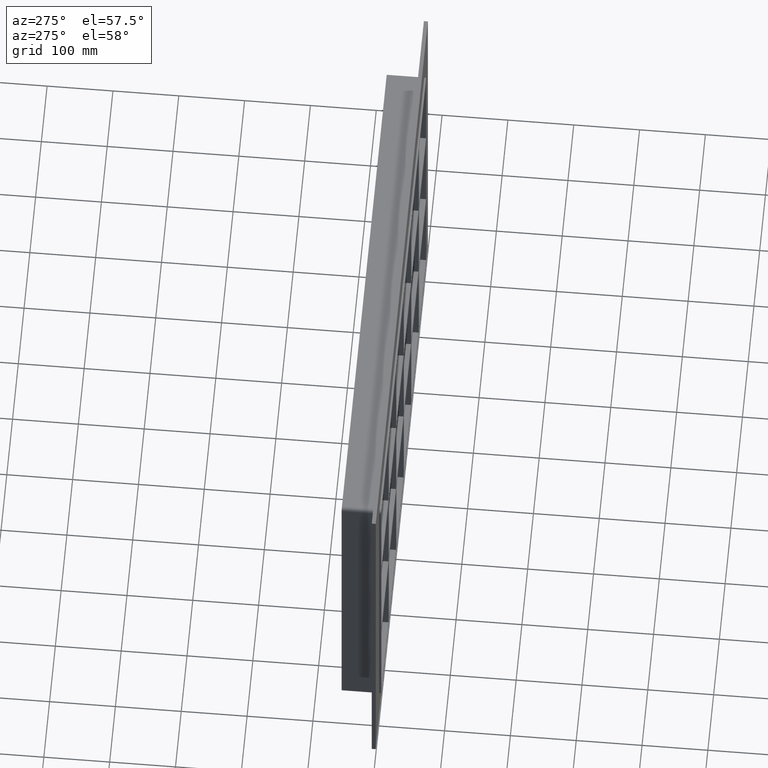
[diagram: clean part render]
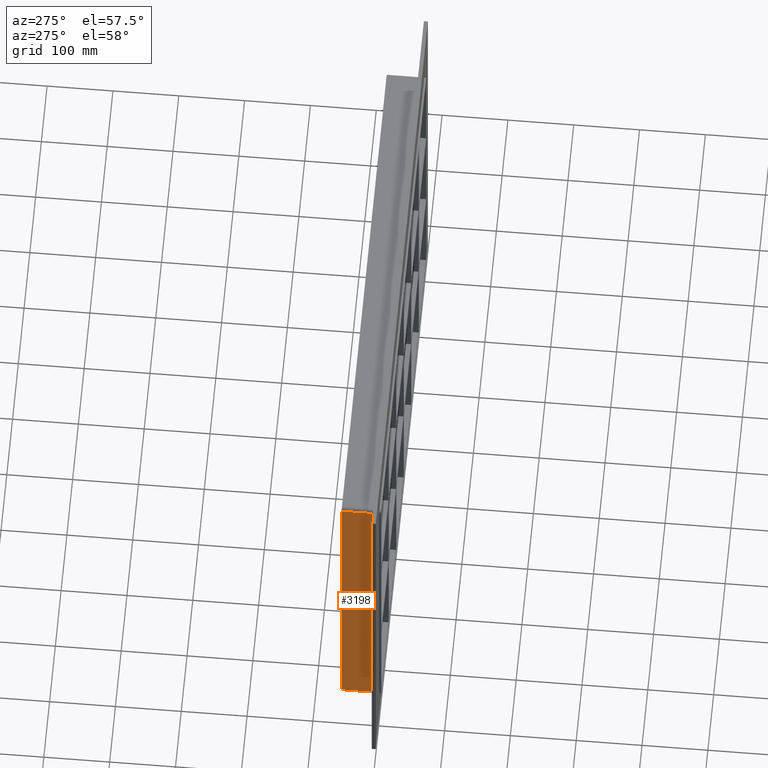
[diagram: same view with one face highlighted and labeled with its STEP entity id]
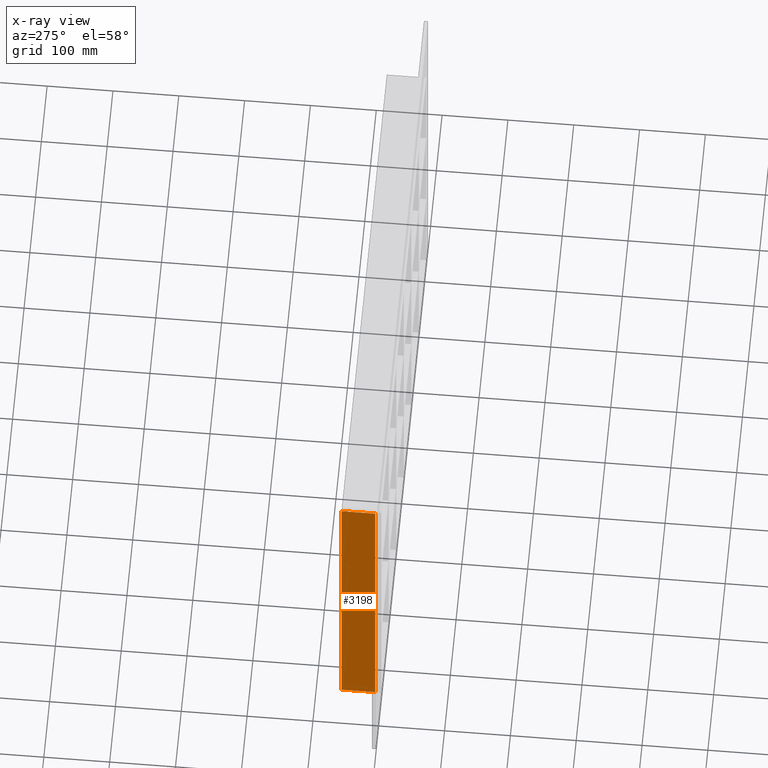
[diagram: x-ray of the same camera — body ghosted, the highlighted face saturated]
A machine part, auxiliary view. The second image highlights one B-rep face of the part: STEP entity #3198.
The next image is the same camera in x-ray: the body ghosted, the highlighted face saturated — about 0% of this face is hidden behind the body in this view.
In plain terms, the highlighted planar face has unit normal (-1, 0, 0).
Its self-contained STEP definition (entity closure, byte-faithful):
#1006=CARTESIAN_POINT('',(-392.5,57.0,-251.25));
#1007=VERTEX_POINT('',#1006);
#1015=CARTESIAN_POINT('',(-392.5,57.0,251.25));
#1016=VERTEX_POINT('',#1015);
#1017=CARTESIAN_POINT('',(-392.5,57.0,-251.25));
#1018=DIRECTION('',(0.0,0.0,1.0));
#1019=VECTOR('',#1018,502.5);
#1020=LINE('',#1017,#1019);
#1021=EDGE_CURVE('',#1007,#1016,#1020,.T.);
#2697=CARTESIAN_POINT('',(-392.5,6.000000000000001,-251.25));
#2698=VERTEX_POINT('',#2697);
#2748=CARTESIAN_POINT('',(-392.5,6.000000000000001,251.25));
#2749=VERTEX_POINT('',#2748);
#2757=CARTESIAN_POINT('',(-392.5,6.000000000000001,-251.25));
#2758=DIRECTION('',(0.0,0.0,1.0));
#2759=VECTOR('',#2758,502.5);
#2760=LINE('',#2757,#2759);
#2761=EDGE_CURVE('',#2698,#2749,#2760,.T.);
#3171=CARTESIAN_POINT('',(-392.5,6.000000000000001,-251.25));
#3172=DIRECTION('',(0.0,1.0,0.0));
#3173=VECTOR('',#3172,51.0);
#3174=LINE('',#3171,#3173);
#3175=EDGE_CURVE('',#2698,#1007,#3174,.T.);
#3182=CARTESIAN_POINT('',(-392.5,0.0,-257.25));
#3183=DIRECTION('',(-1.0,0.0,0.0));
#3184=DIRECTION('',(0.0,0.0,1.0));
#3185=AXIS2_PLACEMENT_3D('',#3182,#3183,#3184);
#3186=PLANE('',#3185);
#3187=ORIENTED_EDGE('',*,*,#2761,.T.);
#3188=CARTESIAN_POINT('',(-392.5,57.0,251.25));
#3189=DIRECTION('',(0.0,-1.0,0.0));
#3190=VECTOR('',#3189,51.0);
#3191=LINE('',#3188,#3190);
#3192=EDGE_CURVE('',#1016,#2749,#3191,.T.);
#3193=ORIENTED_EDGE('',*,*,#3192,.F.);
#3194=ORIENTED_EDGE('',*,*,#1021,.F.);
#3195=ORIENTED_EDGE('',*,*,#3175,.F.);
#3196=EDGE_LOOP('',(#3187,#3193,#3194,#3195));
#3197=FACE_OUTER_BOUND('',#3196,.T.);
#3198=ADVANCED_FACE('',(#3197),#3186,.T.);